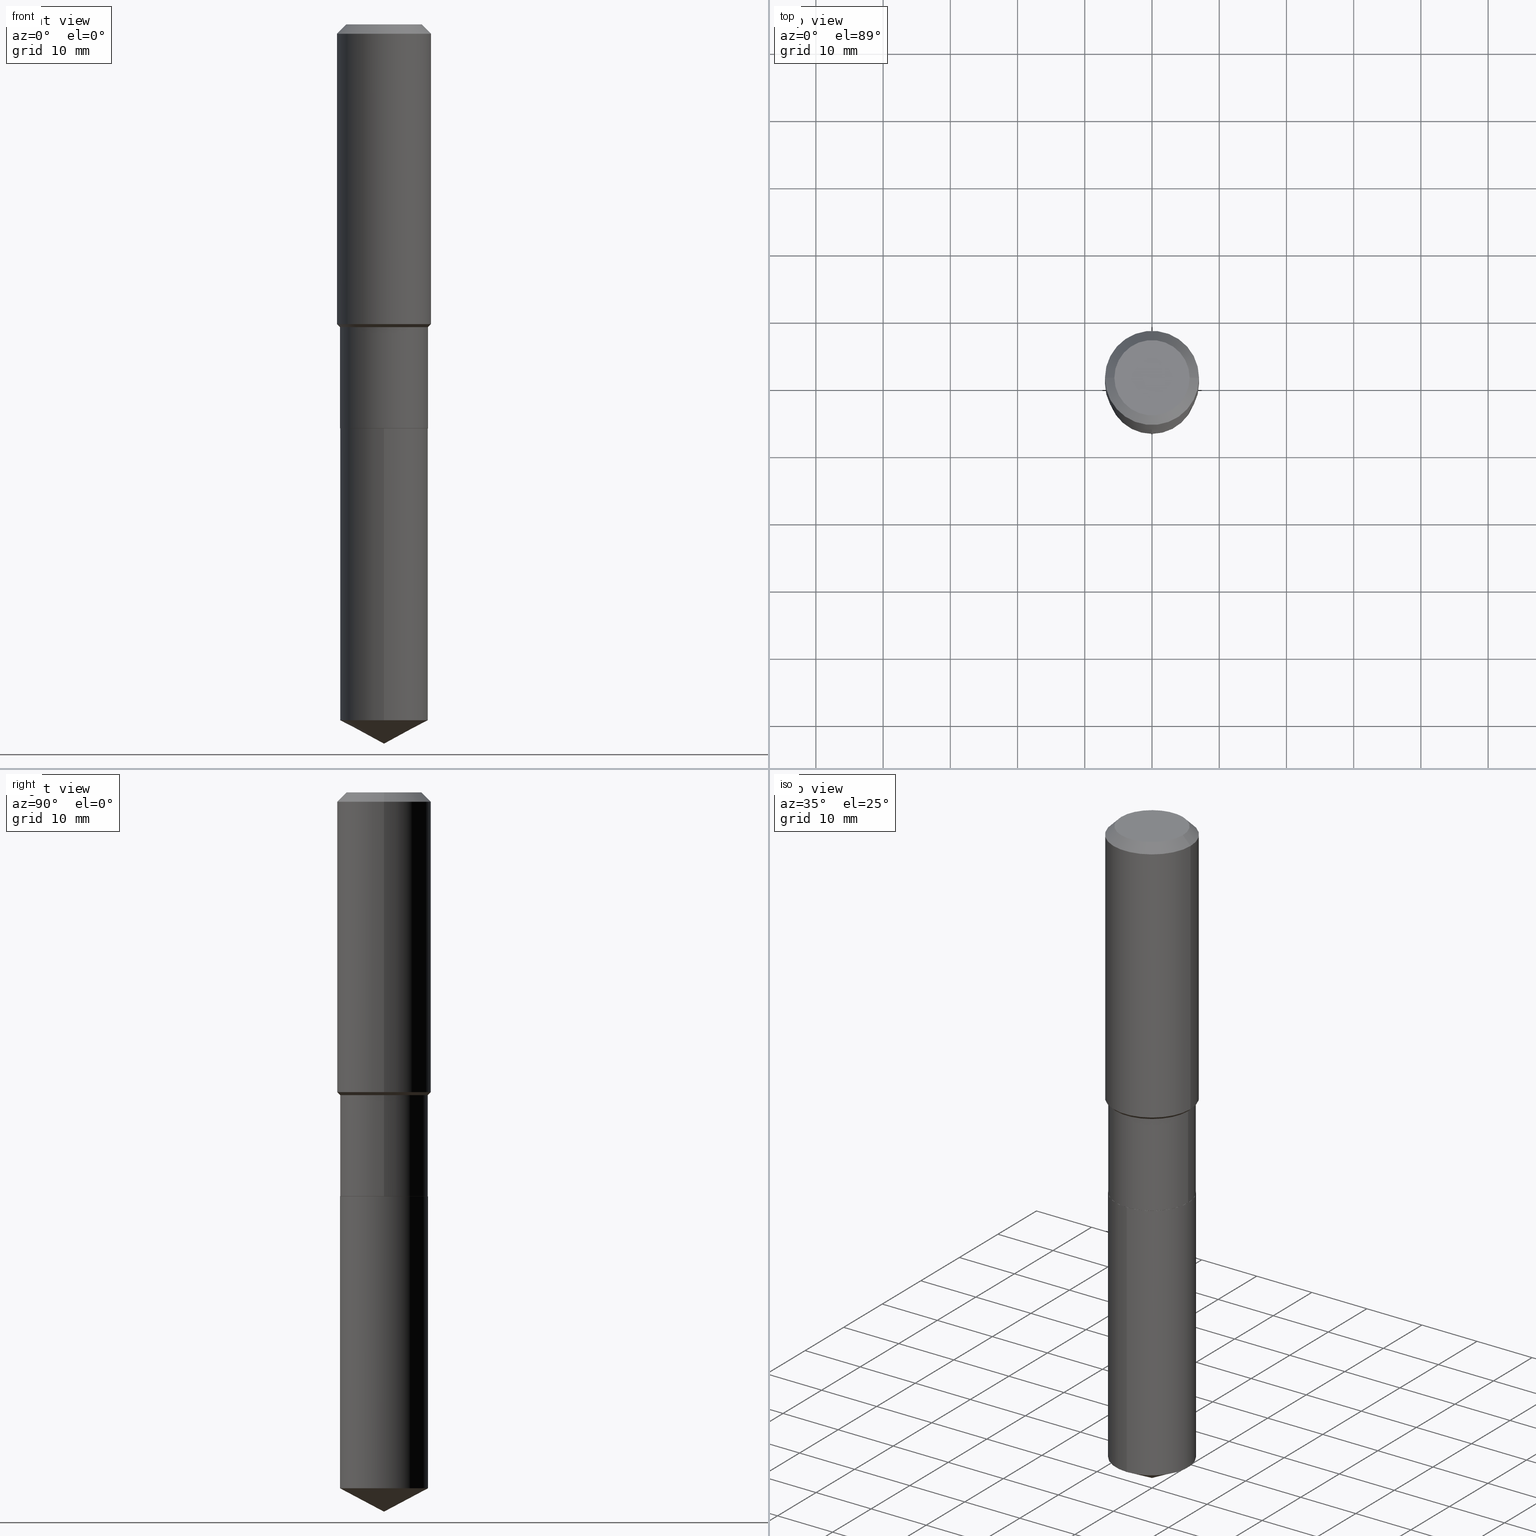
[diagram: canonical four-view strip — front | top / right | iso, engineering-drawing reading convention]
A machine part, canonical four-view strip (front | top / right | iso — engineering-drawing reading convention). The complete STEP part file that produces these views, byte-faithful:
ISO-10303-21;
HEADER;
FILE_DESCRIPTION (( 'STEP AP203' ),
    '1' );
FILE_NAME ('54729.STEP',
    '2024-04-24T15:39:23',
    ( '' ),
    ( '' ),
    'SwSTEP 2.0',
    'SolidWorks 2023',
    '' );
FILE_SCHEMA (( 'CONFIG_CONTROL_DESIGN' ));
ENDSEC;

DATA;
#1 = CARTESIAN_POINT ( 'NONE',  ( 0.2577999999999999181, -7.990953340210302036E-15, -1.773100000000000565 ) ) ;
#2 = ORIENTED_EDGE ( 'NONE', *, *, #6, .F. ) ;
#3 = APPROVAL_PERSON_ORGANIZATION ( #250, #317, #217 ) ;
#4 = CARTESIAN_POINT ( 'NONE',  ( 1.030189574577574283E-28, -1.470805283457749786E-14, -4.212600000000000122 ) ) ;
#5 = CARTESIAN_POINT ( 'NONE',  ( -0.2577999999999999181, 1.831779172789537697E-15, -1.268101466267714406E-29 ) ) ;
#6 = EDGE_CURVE ( 'NONE', #366, #441, #373, .T. ) ;
#7 = LINE ( 'NONE', #1, #436 ) ;
#8 = ORIENTED_EDGE ( 'NONE', *, *, #155, .F. ) ;
#9 = VECTOR ( 'NONE', #417, 39.37007874015748143 ) ;
#10 = CC_DESIGN_SECURITY_CLASSIFICATION ( #194, ( #467 ) ) ;
#11 = CARTESIAN_POINT ( 'NONE',  ( 0.2756000000000002337, -8.053101708041710718E-15, -1.755300000000000304 ) ) ;
#12 = DIRECTION ( 'NONE',  ( -2.445468806185136877E-29, 3.491481338843145188E-15, 1.000000000000000000 ) ) ;
#13 = CC_DESIGN_PERSON_AND_ORGANIZATION_ASSIGNMENT ( #291, #259, ( #223 ) ) ;
#14 = FACE_OUTER_BOUND ( 'NONE', #300, .T. ) ;
#15 = DIRECTION ( 'NONE',  ( 1.000000000000000000, -6.982962677686266711E-15, 0.000000000000000000 ) ) ;
#16 = ORIENTED_EDGE ( 'NONE', *, *, #420, .T. ) ;
#17 = EDGE_CURVE ( 'NONE', #219, #65, #20, .T. ) ;
#18 = DIRECTION ( 'NONE',  ( 1.000000000000000000, -6.982962677686267499E-15, 4.876176775795935793E-29 ) ) ;
#19 = FACE_OUTER_BOUND ( 'NONE', #263, .T. ) ;
#20 = CIRCLE ( 'NONE', #353, 0.2577999999999999736 ) ;
#21 = CIRCLE ( 'NONE', #301, 0.2756000000000002337 ) ;
#22 = DIRECTION ( 'NONE',  ( -2.445468806185136597E-29, 3.491481338843145583E-15, 1.000000000000000000 ) ) ;
#23 = DIRECTION ( 'NONE',  ( -6.982962677686265922E-15, -1.000000000000000000, 3.179031800229941890E-15 ) ) ;
#24 = DIRECTION ( 'NONE',  ( -1.000000000000000000, 6.982962677686265922E-15, -4.876176775795935793E-29 ) ) ;
#25 = CC_DESIGN_PERSON_AND_ORGANIZATION_ASSIGNMENT ( #108, #70, ( #467 ) ) ;
#26 = EDGE_CURVE ( 'NONE', #292, #154, #142, .T. ) ;
#27 = DATE_AND_TIME ( #482, #339 ) ;
#28 = VERTEX_POINT ( 'NONE', #275 ) ;
#29 = AXIS2_PLACEMENT_3D ( 'NONE', #432, #204, #394 ) ;
#30 = EDGE_CURVE ( 'NONE', #72, #81, #265, .T. ) ;
#31 = CALENDAR_DATE ( 2024, 24, 4 ) ;
#32 = PERSON_AND_ORGANIZATION ( #443, #221 ) ;
#33 = CARTESIAN_POINT ( 'NONE',  ( 0.000000000000000000, 0.000000000000000000, 0.000000000000000000 ) ) ;
#34 = ORIENTED_EDGE ( 'NONE', *, *, #195, .T. ) ;
#35 = LOCAL_TIME ( 11, 39, 23.00000000000000000, #473 ) ;
#36 = DIRECTION ( 'NONE',  ( -2.445468806185136597E-29, 3.491481338843145583E-15, 1.000000000000000000 ) ) ;
#37 = DIRECTION ( 'NONE',  ( -6.982962677686265922E-15, -1.000000000000000000, 3.179031800229941890E-15 ) ) ;
#38 = ORIENTED_EDGE ( 'NONE', *, *, #418, .F. ) ;
#39 = DIRECTION ( 'NONE',  ( 1.000000000000000000, -6.982962677686265922E-15, 0.000000000000000000 ) ) ;
#40 = CC_DESIGN_DATE_AND_TIME_ASSIGNMENT ( #180, #364, ( #223 ) ) ;
#41 = CARTESIAN_POINT ( 'NONE',  ( -0.2572999999999999732, -6.432618388592147044E-15, -2.366000000000000547 ) ) ;
#42 = CARTESIAN_POINT ( 'NONE',  ( 5.785979195434034596E-29, -8.260844847702884631E-15, -2.366000000000000547 ) ) ;
#43 = EDGE_CURVE ( 'NONE', #192, #109, #305, .T. ) ;
#44 = EDGE_CURVE ( 'NONE', #264, #192, #416, .T. ) ;
#45 = DIRECTION ( 'NONE',  ( -2.445468806185136877E-29, 3.491481338843145188E-15, 1.000000000000000000 ) ) ;
#46 = PLANE ( 'NONE',  #160 ) ;
#47 = EDGE_LOOP ( 'NONE', ( #87, #145, #408, #392 ) ) ;
#48 = CONICAL_SURFACE ( 'NONE', #29, 0.2756000000000000116, 0.7853981633974452814 ) ;
#49 = AXIS2_PLACEMENT_3D ( 'NONE', #33, #288, #404 ) ;
#50 = DIRECTION ( 'NONE',  ( 1.000000000000000000, -6.982962677686266711E-15, 4.876132675269083677E-29 ) ) ;
#51 = PLANE ( 'NONE',  #55 ) ;
#52 = DIRECTION ( 'NONE',  ( -2.445495569307621090E-29, 3.491443012528485413E-15, 1.000000000000000000 ) ) ;
#53 = CARTESIAN_POINT ( 'NONE',  ( 0.000000000000000000, 0.000000000000000000, 0.000000000000000000 ) ) ;
#54 = FACE_OUTER_BOUND ( 'NONE', #241, .T. ) ;
#55 = AXIS2_PLACEMENT_3D ( 'NONE', #469, #129, #208 ) ;
#56 = APPROVAL_PERSON_ORGANIZATION ( #188, #231, #327 ) ;
#57 = DIRECTION ( 'NONE',  ( 1.000000000000000000, -6.982962677686267499E-15, 0.000000000000000000 ) ) ;
#58 = DIRECTION ( 'NONE',  ( -2.445468806185136597E-29, 3.491481338843145583E-15, 1.000000000000000000 ) ) ;
#59 = ORIENTED_EDGE ( 'NONE', *, *, #271, .F. ) ;
#60 = ADVANCED_FACE ( 'NONE', ( #200 ), #322, .T. ) ;
#61 = MECHANICAL_CONTEXT ( 'NONE', #448, 'mechanical' ) ;
#62 = CALENDAR_DATE ( 2024, 24, 4 ) ;
#63 = APPROVAL_STATUS ( 'not_yet_approved' ) ;
#64 = ORIENTED_EDGE ( 'NONE', *, *, #437, .T. ) ;
#65 = VERTEX_POINT ( 'NONE', #121 ) ;
#66 = CONICAL_SURFACE ( 'NONE', #466, 0.2577999999999999181, 0.7853981633974492782 ) ;
#67 = AXIS2_PLACEMENT_3D ( 'NONE', #94, #243, #23 ) ;
#68 = ORIENTED_EDGE ( 'NONE', *, *, #26, .T. ) ;
#69 = CARTESIAN_POINT ( 'NONE',  ( 4.336060740246867168E-29, -6.190745561902783658E-15, -1.773100000000000565 ) ) ;
#70 = PERSON_AND_ORGANIZATION_ROLE ( 'creator' ) ;
#71 = EDGE_LOOP ( 'NONE', ( #489, #141, #462, #273 ) ) ;
#72 = VERTEX_POINT ( 'NONE', #76 ) ;
#73 = ORIENTED_EDGE ( 'NONE', *, *, #104, .F. ) ;
#74 = CLOSED_SHELL ( 'NONE', ( #389, #431, #176, #158, #402 ) ) ;
#75 = VECTOR ( 'NONE', #77, 39.37007874015748143 ) ;
#76 = CARTESIAN_POINT ( 'NONE',  ( -0.2756000000000000116, -1.202268042979367764E-15, -0.05512000000000035621 ) ) ;
#77 = DIRECTION ( 'NONE',  ( -0.7071067811865482389, 7.493145998870357316E-15, 0.7071067811865467956 ) ) ;
#78 = ORIENTED_EDGE ( 'NONE', *, *, #171, .F. ) ;
#79 = CARTESIAN_POINT ( 'NONE',  ( 0.2756000000000000116, -2.116954965367370658E-15, -0.05512000000000035621 ) ) ;
#80 = AXIS2_PLACEMENT_3D ( 'NONE', #312, #387, #206 ) ;
#81 = VERTEX_POINT ( 'NONE', #79 ) ;
#82 = EDGE_CURVE ( 'NONE', #154, #441, #372, .T. ) ;
#83 = DIRECTION ( 'NONE',  ( -0.7071067811864267805, 7.493145998869918709E-15, 0.7071067811866682540 ) ) ;
#84 = DIRECTION ( 'NONE',  ( 1.000000000000000000, -6.982962677686264344E-15, 0.000000000000000000 ) ) ;
#85 = CC_DESIGN_PERSON_AND_ORGANIZATION_ASSIGNMENT ( #444, #196, ( #442 ) ) ;
#86 = FACE_OUTER_BOUND ( 'NONE', #294, .T. ) ;
#87 = ORIENTED_EDGE ( 'NONE', *, *, #6, .T. ) ;
#88 = DIRECTION ( 'NONE',  ( -2.445495569307621090E-29, 3.491443012528485413E-15, 1.000000000000000000 ) ) ;
#89 = DIRECTION ( 'NONE',  ( -2.445468806185136597E-29, 3.491481338843145583E-15, 1.000000000000000000 ) ) ;
#90 = CIRCLE ( 'NONE', #478, 0.2756000000000002337 ) ;
#91 = ADVANCED_FACE ( 'NONE', ( #228 ), #344, .T. ) ;
#92 = CONICAL_SURFACE ( 'NONE', #249, 0.2572999999999999732, 0.7853981633972775267 ) ;
#93 = DIRECTION ( 'NONE',  ( 6.273719981627760554E-15, 0.8829475928589289868, 0.4694715627858866425 ) ) ;
#94 = CARTESIAN_POINT ( 'NONE',  ( 5.785979195434034596E-29, -8.260844847702884631E-15, -2.366000000000000547 ) ) ;
#95 = DIRECTION ( 'NONE',  ( 1.000000000000000000, -6.982962677686266711E-15, 0.000000000000000000 ) ) ;
#96 = EDGE_LOOP ( 'NONE', ( #78, #64, #260 ) ) ;
#97 = PLANE ( 'NONE',  #98 ) ;
#98 = AXIS2_PLACEMENT_3D ( 'NONE', #351, #282, #132 ) ;
#99 = AXIS2_PLACEMENT_3D ( 'NONE', #136, #421, #311 ) ;
#100 = LENGTH_MEASURE_WITH_UNIT ( LENGTH_MEASURE( 0.02539999999999999897 ), #440 );
#101 = VERTEX_POINT ( 'NONE', #119 ) ;
#102 = APPLICATION_PROTOCOL_DEFINITION ( 'international standard', 'config_control_design', 1994, #252 ) ;
#103 = ORIENTED_EDGE ( 'NONE', *, *, #348, .T. ) ;
#104 = EDGE_CURVE ( 'NONE', #441, #192, #341, .T. ) ;
#105 = EDGE_CURVE ( 'NONE', #371, #72, #419, .T. ) ;
#106 = CIRCLE ( 'NONE', #410, 0.2577999999999999181 ) ;
#107 = CARTESIAN_POINT ( 'NONE',  ( 0.2756000000000000116, -2.083203699582869812E-15, -0.05512000000000035621 ) ) ;
#108 = PERSON_AND_ORGANIZATION ( #443, #221 ) ;
#109 = VERTEX_POINT ( 'NONE', #148 ) ;
#110 = EDGE_CURVE ( 'NONE', #109, #72, #306, .T. ) ;
#111 =( CONVERSION_BASED_UNIT ( 'INCH', #100 ) LENGTH_UNIT ( ) NAMED_UNIT ( #385 ) );
#112 = EDGE_LOOP ( 'NONE', ( #244, #103, #140, #378 ) ) ;
#113 = CARTESIAN_POINT ( 'NONE',  ( 5.784756461030941795E-29, -8.259099107033462339E-15, -2.365500000000000380 ) ) ;
#114 = CIRCLE ( 'NONE', #182, 0.2204800000000000093 ) ;
#115 = CARTESIAN_POINT ( 'NONE',  ( 4.336060740246867168E-29, -6.190745561902783658E-15, -1.773100000000000565 ) ) ;
#116 = CARTESIAN_POINT ( 'NONE',  ( -1.800207778307461580E-15, -0.2578000000000082448, -2.365999999999999659 ) ) ;
#117 = ORIENTED_EDGE ( 'NONE', *, *, #487, .F. ) ;
#118 = CARTESIAN_POINT ( 'NONE',  ( 1.347942405969256063E-30, -1.924504513970354330E-16, -0.05512000000000035621 ) ) ;
#119 = CARTESIAN_POINT ( 'NONE',  ( 1.030189463526528547E-28, -1.470805283457749786E-14, -4.212600000000000122 ) ) ;
#120 = AXIS2_PLACEMENT_3D ( 'NONE', #198, #269, #411 ) ;
#121 = CARTESIAN_POINT ( 'NONE',  ( 1.831779172789637883E-15, 0.2577999999999917025, -2.366000000000000991 ) ) ;
#122 = ORIENTED_EDGE ( 'NONE', *, *, #30, .F. ) ;
#123 = PERSON_AND_ORGANIZATION ( #443, #221 ) ;
#124 = CARTESIAN_POINT ( 'NONE',  ( 5.785979195434034596E-29, -8.260844847702884631E-15, -2.366000000000000547 ) ) ;
#125 = CARTESIAN_POINT ( 'NONE',  ( -0.2577999999999999181, -5.393143161678585695E-15, -1.773100000000000565 ) ) ;
#126 = DIRECTION ( 'NONE',  ( -6.165590087286829718E-15, -0.8829475928589257672, 0.4694715627858929707 ) ) ;
#127 = AXIS2_PLACEMENT_3D ( 'NONE', #118, #203, #197 ) ;
#128 = CC_DESIGN_APPROVAL ( #317, ( #223 ) ) ;
#129 = DIRECTION ( 'NONE',  ( 2.445495569307620810E-29, -3.491443012528485413E-15, -1.000000000000000000 ) ) ;
#130 = EDGE_CURVE ( 'NONE', #264, #185, #7, .T. ) ;
#131 = CARTESIAN_POINT ( 'NONE',  ( 0.000000000000000000, 0.000000000000000000, 0.000000000000000000 ) ) ;
#132 = DIRECTION ( 'NONE',  ( 1.000000000000000000, -6.982962677686265922E-15, 4.876176775795935793E-29 ) ) ;
#133 = ORIENTED_EDGE ( 'NONE', *, *, #348, .F. ) ;
#134 = CALENDAR_DATE ( 2024, 24, 4 ) ;
#135 = CYLINDRICAL_SURFACE ( 'NONE', #338, 0.2756000000000001227 ) ;
#136 = CARTESIAN_POINT ( 'NONE',  ( 0.000000000000000000, 0.000000000000000000, 0.000000000000000000 ) ) ;
#137 = ORIENTED_EDGE ( 'NONE', *, *, #423, .T. ) ;
#138 = AXIS2_PLACEMENT_3D ( 'NONE', #450, #415, #375 ) ;
#139 = LOCAL_TIME ( 11, 39, 23.00000000000000000, #218 ) ;
#140 = ORIENTED_EDGE ( 'NONE', *, *, #487, .T. ) ;
#141 = ORIENTED_EDGE ( 'NONE', *, *, #418, .T. ) ;
#142 = CIRCLE ( 'NONE', #477, 0.2572999999999999732 ) ;
#143 = CIRCLE ( 'NONE', #67, 0.2577999999999999736 ) ;
#144 = DIRECTION ( 'NONE',  ( 1.000000000000000000, -6.982962677686265922E-15, 0.000000000000000000 ) ) ;
#145 = ORIENTED_EDGE ( 'NONE', *, *, #104, .T. ) ;
#146 = DESIGN_CONTEXT ( 'detailed design', #252, 'design' ) ;
#147 = ORIENTED_EDGE ( 'NONE', *, *, #420, .F. ) ;
#148 = CARTESIAN_POINT ( 'NONE',  ( -0.2756000000000002337, -4.170341414316536808E-15, -1.755300000000000304 ) ) ;
#149 = ADVANCED_BREP_SHAPE_REPRESENTATION ( '54729', ( #409, #251, #49 ), #266 ) ;
#150 = AXIS2_PLACEMENT_3D ( 'NONE', #235, #242, #50 ) ;
#151 = EDGE_CURVE ( 'NONE', #192, #264, #106, .T. ) ;
#152 = CARTESIAN_POINT ( 'NONE',  ( 5.785979195434034596E-29, -8.260844847702884631E-15, -2.366000000000000547 ) ) ;
#153 = AXIS2_PLACEMENT_3D ( 'NONE', #425, #89, #237 ) ;
#154 = VERTEX_POINT ( 'NONE', #370 ) ;
#155 = EDGE_CURVE ( 'NONE', #292, #366, #456, .T. ) ;
#156 = DIRECTION ( 'NONE',  ( 0.7071067811865482389, -2.468850131082264555E-15, 0.7071067811865467956 ) ) ;
#157 = CYLINDRICAL_SURFACE ( 'NONE', #330, 0.2577999999999999736 ) ;
#158 = ADVANCED_FACE ( 'NONE', ( #267 ), #157, .T. ) ;
#159 = CARTESIAN_POINT ( 'NONE',  ( 5.785979195434034596E-29, -8.260844847702884631E-15, -2.366000000000000547 ) ) ;
#160 = AXIS2_PLACEMENT_3D ( 'NONE', #215, #357, #24 ) ;
#161 = EDGE_CURVE ( 'NONE', #363, #219, #453, .T. ) ;
#162 = DIRECTION ( 'NONE',  ( -2.445468806185136597E-29, 3.491481338843145583E-15, 1.000000000000000000 ) ) ;
#163 = DIRECTION ( 'NONE',  ( -6.982962677686265922E-15, -1.000000000000000000, 4.238709066973255853E-15 ) ) ;
#164 = DIRECTION ( 'NONE',  ( 2.445468806185136597E-29, -3.491481338843145583E-15, -1.000000000000000000 ) ) ;
#165 = ORIENTED_EDGE ( 'NONE', *, *, #186, .T. ) ;
#166 = DATE_TIME_ROLE ( 'classification_date' ) ;
#167 = DIRECTION ( 'NONE',  ( -2.445468806185136597E-29, 3.491481338843145583E-15, 1.000000000000000000 ) ) ;
#168 = APPROVAL ( #360, 'UNSPECIFIED' ) ;
#169 = FACE_OUTER_BOUND ( 'NONE', #283, .T. ) ;
#170 = AXIS2_PLACEMENT_3D ( 'NONE', #459, #272, #84 ) ;
#171 = EDGE_CURVE ( 'NONE', #101, #28, #340, .T. ) ;
#172 = APPROVAL_DATE_TIME ( #290, #168 ) ;
#173 = AXIS2_PLACEMENT_3D ( 'NONE', #113, #314, #429 ) ;
#174 = LINE ( 'NONE', #424, #485 ) ;
#175 = LINE ( 'NONE', #355, #458 ) ;
#176 = ADVANCED_FACE ( 'NONE', ( #383 ), #486, .T. ) ;
#177 = DIRECTION ( 'NONE',  ( -6.982962677686265133E-15, -1.000000000000000000, 3.541896320645570335E-15 ) ) ;
#178 = CARTESIAN_POINT ( 'NONE',  ( 1.347942405969256063E-30, -1.924504513970354330E-16, -0.05512000000000035621 ) ) ;
#179 = DIRECTION ( 'NONE',  ( -2.445495569307621090E-29, 3.491443012528485413E-15, 1.000000000000000000 ) ) ;
#180 = DATE_AND_TIME ( #31, #401 ) ;
#181 = ORIENTED_EDGE ( 'NONE', *, *, #130, .F. ) ;
#182 = AXIS2_PLACEMENT_3D ( 'NONE', #187, #365, #481 ) ;
#183 = EDGE_CURVE ( 'NONE', #109, #185, #90, .T. ) ;
#184 = CALENDAR_DATE ( 2024, 24, 4 ) ;
#185 = VERTEX_POINT ( 'NONE', #11 ) ;
#186 = EDGE_CURVE ( 'NONE', #480, #371, #400, .T. ) ;
#187 = CARTESIAN_POINT ( 'NONE',  ( -9.439721640706190018E-47, 1.347742071746724849E-32, 3.860086710912454339E-18 ) ) ;
#188 = PERSON_AND_ORGANIZATION ( #443, #221 ) ;
#189 = ORIENTED_EDGE ( 'NONE', *, *, #377, .T. ) ;
#190 = ORIENTED_EDGE ( 'NONE', *, *, #43, .T. ) ;
#191 = PERSON_AND_ORGANIZATION_ROLE ( 'design_supplier' ) ;
#192 = VERTEX_POINT ( 'NONE', #125 ) ;
#193 = AXIS2_PLACEMENT_3D ( 'NONE', #315, #214, #163 ) ;
#194 = SECURITY_CLASSIFICATION ( '', '', #329 ) ;
#195 = EDGE_CURVE ( 'NONE', #366, #264, #174, .T. ) ;
#196 = PERSON_AND_ORGANIZATION_ROLE ( 'design_owner' ) ;
#197 = DIRECTION ( 'NONE',  ( 1.000000000000000000, -6.982962677686265922E-15, 0.000000000000000000 ) ) ;
#198 = CARTESIAN_POINT ( 'NONE',  ( 5.785979195434034596E-29, -8.260844847702884631E-15, -2.366000000000000547 ) ) ;
#199 = AXIS2_PLACEMENT_3D ( 'NONE', #131, #426, #18 ) ;
#200 = FACE_OUTER_BOUND ( 'NONE', #224, .T. ) ;
#201 = ORIENTED_EDGE ( 'NONE', *, *, #30, .T. ) ;
#202 = DIRECTION ( 'NONE',  ( -2.445468806185136597E-29, 3.491481338843145583E-15, 1.000000000000000000 ) ) ;
#203 = DIRECTION ( 'NONE',  ( -2.445468806185136597E-29, 3.491481338843145583E-15, 1.000000000000000000 ) ) ;
#204 = DIRECTION ( 'NONE',  ( 2.445468806185136597E-29, -3.491481338843145583E-15, -1.000000000000000000 ) ) ;
#205 = VECTOR ( 'NONE', #299, 39.37007874015748143 ) ;
#206 = DIRECTION ( 'NONE',  ( -6.982962677686265922E-15, -1.000000000000000000, 3.179031800229941890E-15 ) ) ;
#207 = CARTESIAN_POINT ( 'NONE',  ( -1.800207778307461580E-15, -0.2578000000000082448, -2.365999999999999659 ) ) ;
#208 = DIRECTION ( 'NONE',  ( 6.982962677686265922E-15, 1.000000000000000000, -3.491443012528485413E-15 ) ) ;
#209 = DIRECTION ( 'NONE',  ( -2.445468806185136597E-29, 3.491481338843145583E-15, 1.000000000000000000 ) ) ;
#210 = DIRECTION ( 'NONE',  ( -2.445468806185136597E-29, 3.491481338843145583E-15, 1.000000000000000000 ) ) ;
#211 = CARTESIAN_POINT ( 'NONE',  ( -8.597752180862979327E-28, 1.227502428053811181E-13, 35.15747874015747954 ) ) ;
#212 = PERSON_AND_ORGANIZATION_ROLE ( 'classification_officer' ) ;
#213 = PRODUCT_DEFINITION_SHAPE ( 'NONE', 'NONE',  #223 ) ;
#214 = DIRECTION ( 'NONE',  ( -2.445495569307621090E-29, 3.491443012528485413E-15, 1.000000000000000000 ) ) ;
#215 = CARTESIAN_POINT ( 'NONE',  ( -4.719860820353095009E-47, 6.738710358733624243E-33, 1.930043355456227170E-18 ) ) ;
#216 = ORIENTED_EDGE ( 'NONE', *, *, #254, .F. ) ;
#217 = APPROVAL_ROLE ( '' ) ;
#218 = COORDINATED_UNIVERSAL_TIME_OFFSET ( 5, 0, .BEHIND. ) ;
#219 = VERTEX_POINT ( 'NONE', #207 ) ;
#220 = VECTOR ( 'NONE', #413, 39.37007874015748143 ) ;
#221 = ORGANIZATION ( 'UNSPECIFIED', 'UNSPECIFIED', '' ) ;
#222 =( NAMED_UNIT ( * ) SI_UNIT ( $, .STERADIAN. ) SOLID_ANGLE_UNIT ( ) );
#223 = PRODUCT_DEFINITION ( 'UNKNOWN', '', #467, #146 ) ;
#224 = EDGE_LOOP ( 'NONE', ( #68, #454, #2, #8 ) ) ;
#225 = CC_DESIGN_APPROVAL ( #168, ( #194 ) ) ;
#226 = ORIENTED_EDGE ( 'NONE', *, *, #326, .F. ) ;
#227 = CARTESIAN_POINT ( 'NONE',  ( -0.2756000000000001227, 1.958255779754836984E-15, -1.355658510874252567E-29 ) ) ;
#228 = FACE_OUTER_BOUND ( 'NONE', #325, .T. ) ;
#229 = DIRECTION ( 'NONE',  ( -2.445468806185136597E-29, 3.491481338843145583E-15, 1.000000000000000000 ) ) ;
#230 = ADVANCED_FACE ( 'NONE', ( #468 ), #349, .T. ) ;
#231 = APPROVAL ( #63, 'UNSPECIFIED' ) ;
#232 = CARTESIAN_POINT ( 'NONE',  ( 0.2572999999999999732, -1.005756114467156079E-14, -2.366000000000000547 ) ) ;
#233 = CARTESIAN_POINT ( 'NONE',  ( 0.2204800000000000093, -1.797903149065768707E-15, 3.860086710924123164E-18 ) ) ;
#234 = ORIENTED_EDGE ( 'NONE', *, *, #183, .T. ) ;
#235 = CARTESIAN_POINT ( 'NONE',  ( -9.439721640706190018E-47, 1.347742071746724849E-32, 3.860086710912454339E-18 ) ) ;
#236 = VECTOR ( 'NONE', #303, 39.37007874015748143 ) ;
#237 = DIRECTION ( 'NONE',  ( 1.000000000000000000, -6.982962677686265922E-15, 0.000000000000000000 ) ) ;
#238 = ADVANCED_FACE ( 'NONE', ( #287 ), #48, .T. ) ;
#239 = CARTESIAN_POINT ( 'NONE',  ( -8.597752180862979327E-28, 1.227502428053811181E-13, 35.15747874015747954 ) ) ;
#240 = CARTESIAN_POINT ( 'NONE',  ( 0.2756000000000001227, -1.924504513970336137E-15, 1.343874319409360548E-29 ) ) ;
#241 = EDGE_LOOP ( 'NONE', ( #310, #16 ) ) ;
#242 = DIRECTION ( 'NONE',  ( -2.445468806185136597E-29, 3.491481338843145583E-15, 1.000000000000000000 ) ) ;
#243 = DIRECTION ( 'NONE',  ( -2.445495569307621090E-29, 3.491443012528485413E-15, 1.000000000000000000 ) ) ;
#244 = ORIENTED_EDGE ( 'NONE', *, *, #186, .F. ) ;
#245 = CYLINDRICAL_SURFACE ( 'NONE', #80, 0.2577999999999999736 ) ;
#246 = ORIENTED_EDGE ( 'NONE', *, *, #105, .T. ) ;
#247 = VECTOR ( 'NONE', #258, 39.37007874015748143 ) ;
#248 = DATE_AND_TIME ( #134, #35 ) ;
#249 = AXIS2_PLACEMENT_3D ( 'NONE', #124, #58, #15 ) ;
#250 = PERSON_AND_ORGANIZATION ( #443, #221 ) ;
#251 = MANIFOLD_SOLID_BREP ( 'Body-Move/Copy2[2]', #435 ) ;
#252 = APPLICATION_CONTEXT ( 'configuration controlled 3d designs of mechanical parts and assemblies' ) ;
#253 = COORDINATED_UNIVERSAL_TIME_OFFSET ( 5, 0, .BEHIND. ) ;
#254 = EDGE_CURVE ( 'NONE', #185, #109, #21, .T. ) ;
#255 = ORIENTED_EDGE ( 'NONE', *, *, #130, .T. ) ;
#256 =( NAMED_UNIT ( * ) PLANE_ANGLE_UNIT ( ) SI_UNIT ( $, .RADIAN. ) );
#257 = EDGE_CURVE ( 'NONE', #28, #363, #451, .T. ) ;
#258 = DIRECTION ( 'NONE',  ( 0.7071067811865453523, -7.319954787623248157E-15, -0.7071067811865496822 ) ) ;
#259 = PERSON_AND_ORGANIZATION_ROLE ( 'creator' ) ;
#260 = ORIENTED_EDGE ( 'NONE', *, *, #257, .F. ) ;
#261 = ORIENTED_EDGE ( 'NONE', *, *, #374, .T. ) ;
#262 = ORIENTED_EDGE ( 'NONE', *, *, #171, .T. ) ;
#263 = EDGE_LOOP ( 'NONE', ( #277, #165 ) ) ;
#264 = VERTEX_POINT ( 'NONE', #390 ) ;
#265 = CIRCLE ( 'NONE', #127, 0.2756000000000000116 ) ;
#266 =( GEOMETRIC_REPRESENTATION_CONTEXT ( 3 ) GLOBAL_UNCERTAINTY_ASSIGNED_CONTEXT ( ( #379 ) ) GLOBAL_UNIT_ASSIGNED_CONTEXT ( ( #111, #256, #222 ) ) REPRESENTATION_CONTEXT ( 'NONE', 'WORKASPACE' ) );
#267 = FACE_OUTER_BOUND ( 'NONE', #337, .T. ) ;
#268 = ADVANCED_FACE ( 'NONE', ( #14 ), #135, .T. ) ;
#269 = DIRECTION ( 'NONE',  ( -2.445468806185136597E-29, 3.491481338843145583E-15, 1.000000000000000000 ) ) ;
#270 = ORIENTED_EDGE ( 'NONE', *, *, #423, .F. ) ;
#271 = EDGE_CURVE ( 'NONE', #28, #65, #284, .T. ) ;
#272 = DIRECTION ( 'NONE',  ( -2.445468806185136597E-29, 3.491481338843145583E-15, 1.000000000000000000 ) ) ;
#273 = ORIENTED_EDGE ( 'NONE', *, *, #374, .F. ) ;
#274 = CIRCLE ( 'NONE', #173, 0.2577999999999999736 ) ;
#275 = CARTESIAN_POINT ( 'NONE',  ( 1.831779172789638277E-15, 0.2577999999999858183, -4.075525308517672585 ) ) ;
#276 = CARTESIAN_POINT ( 'NONE',  ( 4.336060740246867168E-29, -6.190745561902783658E-15, -1.773100000000000565 ) ) ;
#277 = ORIENTED_EDGE ( 'NONE', *, *, #326, .T. ) ;
#278 = LINE ( 'NONE', #240, #307 ) ;
#279 = VECTOR ( 'NONE', #93, 39.37007874015748854 ) ;
#280 = FACE_OUTER_BOUND ( 'NONE', #47, .T. ) ;
#281 = CIRCLE ( 'NONE', #345, 0.2577999999999999736 ) ;
#282 = DIRECTION ( 'NONE',  ( -2.438088387897960049E-29, 3.491481338843145188E-15, 1.000000000000000000 ) ) ;
#283 = EDGE_LOOP ( 'NONE', ( #137, #405, #328, #422 ) ) ;
#284 = LINE ( 'NONE', #474, #313 ) ;
#285 = CARTESIAN_POINT ( 'NONE',  ( 5.785979195434034596E-29, -8.260844847702884631E-15, -2.366000000000000547 ) ) ;
#286 = APPROVAL_ROLE ( '' ) ;
#287 = FACE_OUTER_BOUND ( 'NONE', #112, .T. ) ;
#288 = DIRECTION ( 'NONE',  ( 0.000000000000000000, 0.000000000000000000, 1.000000000000000000 ) ) ;
#289 = ORIENTED_EDGE ( 'NONE', *, *, #110, .T. ) ;
#290 = DATE_AND_TIME ( #62, #438 ) ;
#291 = PERSON_AND_ORGANIZATION ( #443, #221 ) ;
#292 = VERTEX_POINT ( 'NONE', #320 ) ;
#293 = LINE ( 'NONE', #107, #247 ) ;
#294 = EDGE_LOOP ( 'NONE', ( #343, #38 ) ) ;
#295 = CIRCLE ( 'NONE', #354, 0.2572999999999999732 ) ;
#296 = CARTESIAN_POINT ( 'NONE',  ( 0.2577999999999999736, -1.005930688534098151E-14, -2.365500000000000380 ) ) ;
#297 = ORIENTED_EDGE ( 'NONE', *, *, #43, .F. ) ;
#298 = CC_DESIGN_PERSON_AND_ORGANIZATION_ASSIGNMENT ( #32, #191, ( #467 ) ) ;
#299 = DIRECTION ( 'NONE',  ( 0.7071067811864267805, -2.468850131080992517E-15, 0.7071067811866682540 ) ) ;
#300 = EDGE_LOOP ( 'NONE', ( #479, #234, #189, #122 ) ) ;
#301 = AXIS2_PLACEMENT_3D ( 'NONE', #386, #167, #57 ) ;
#302 = AXIS2_PLACEMENT_3D ( 'NONE', #461, #210, #384 ) ;
#303 = DIRECTION ( 'NONE',  ( -2.445468806185136877E-29, 3.491481338843145188E-15, 1.000000000000000000 ) ) ;
#304 = EDGE_LOOP ( 'NONE', ( #133, #226, #246, #201 ) ) ;
#305 = LINE ( 'NONE', #342, #75 ) ;
#306 = LINE ( 'NONE', #227, #236 ) ;
#307 = VECTOR ( 'NONE', #12, 39.37007874015748143 ) ;
#308 = APPROVAL_PERSON_ORGANIZATION ( #358, #168, #286 ) ;
#309 = DIRECTION ( 'NONE',  ( -2.445495569307621090E-29, 3.491443012528485413E-15, 1.000000000000000000 ) ) ;
#310 = ORIENTED_EDGE ( 'NONE', *, *, #17, .T. ) ;
#311 = DIRECTION ( 'NONE',  ( 1.000000000000000000, -6.982962677686267499E-15, 4.876176775795936353E-29 ) ) ;
#312 = CARTESIAN_POINT ( 'NONE',  ( 5.785979195434034596E-29, -8.260844847702884631E-15, -2.366000000000000547 ) ) ;
#313 = VECTOR ( 'NONE', #179, 39.37007874015748143 ) ;
#314 = DIRECTION ( 'NONE',  ( -2.445468806185136597E-29, 3.491481338843145583E-15, 1.000000000000000000 ) ) ;
#315 = CARTESIAN_POINT ( 'NONE',  ( 9.966615763033243372E-29, -1.422955504086751126E-14, -4.075525308517671697 ) ) ;
#316 = DIRECTION ( 'NONE',  ( -6.982962677686265133E-15, -1.000000000000000000, 3.541896320645570335E-15 ) ) ;
#317 = APPROVAL ( #488, 'UNSPECIFIED' ) ;
#318 = DIRECTION ( 'NONE',  ( -1.000000000000000000, 6.982962677686269077E-15, 0.000000000000000000 ) ) ;
#319 = COORDINATED_UNIVERSAL_TIME_OFFSET ( 5, 0, .BEHIND. ) ;
#320 = CARTESIAN_POINT ( 'NONE',  ( 0.2572999999999999732, -1.005756114467156079E-14, -2.366000000000000547 ) ) ;
#321 = ORIENTED_EDGE ( 'NONE', *, *, #44, .T. ) ;
#322 = CONICAL_SURFACE ( 'NONE', #120, 0.2572999999999999732, 0.7853981633972775267 ) ;
#323 = CONICAL_SURFACE ( 'NONE', #367, 74.04434902938334062, 1.082104136236485381 ) ;
#324 = DATE_AND_TIME ( #184, #139 ) ;
#325 = EDGE_LOOP ( 'NONE', ( #321, #190, #216, #181 ) ) ;
#326 = EDGE_CURVE ( 'NONE', #371, #480, #114, .T. ) ;
#327 = APPROVAL_ROLE ( '' ) ;
#328 = ORIENTED_EDGE ( 'NONE', *, *, #17, .F. ) ;
#329 = SECURITY_CLASSIFICATION_LEVEL ( 'unclassified' ) ;
#330 = AXIS2_PLACEMENT_3D ( 'NONE', #159, #309, #37 ) ;
#331 = CC_DESIGN_APPROVAL ( #231, ( #467 ) ) ;
#332 = CARTESIAN_POINT ( 'NONE',  ( -1.800207778307420165E-15, -0.2578000000000142955, -4.075525308517669920 ) ) ;
#333 = EDGE_LOOP ( 'NONE', ( #73, #261, #34, #399 ) ) ;
#334 = CARTESIAN_POINT ( 'NONE',  ( -0.2204800000000000093, 1.635828836874783961E-15, 3.860086710901350968E-18 ) ) ;
#335 = DIRECTION ( 'NONE',  ( 1.000000000000000000, -6.982962677686265922E-15, 0.000000000000000000 ) ) ;
#336 = DIRECTION ( 'NONE',  ( -0.7071067811865453523, 2.468850131082234184E-15, -0.7071067811865496822 ) ) ;
#337 = EDGE_LOOP ( 'NONE', ( #59, #434, #406, #147 ) ) ;
#338 = AXIS2_PLACEMENT_3D ( 'NONE', #53, #22, #470 ) ;
#339 = LOCAL_TIME ( 11, 39, 23.00000000000000000, #253 ) ;
#340 = LINE ( 'NONE', #4, #279 ) ;
#341 = LINE ( 'NONE', #5, #9 ) ;
#342 = CARTESIAN_POINT ( 'NONE',  ( -0.2577999999999999181, -4.358966389113245961E-15, -1.773100000000000565 ) ) ;
#343 = ORIENTED_EDGE ( 'NONE', *, *, #26, .F. ) ;
#344 = CONICAL_SURFACE ( 'NONE', #457, 0.2577999999999999181, 0.7853981633974492782 ) ;
#345 = AXIS2_PLACEMENT_3D ( 'NONE', #464, #52, #391 ) ;
#346 = CARTESIAN_POINT ( 'NONE',  ( 4.292531395496771171E-29, -6.128597194071374975E-15, -1.755300000000000304 ) ) ;
#347 = FACE_OUTER_BOUND ( 'NONE', #333, .T. ) ;
#348 = EDGE_CURVE ( 'NONE', #480, #81, #293, .T. ) ;
#349 = CYLINDRICAL_SURFACE ( 'NONE', #199, 0.2756000000000001227 ) ;
#350 = FACE_OUTER_BOUND ( 'NONE', #388, .T. ) ;
#351 = CARTESIAN_POINT ( 'NONE',  ( 4.031811109684418189E-29, -1.077291338754340070E-14, -2.366000000000000547 ) ) ;
#352 = PRODUCT_RELATED_PRODUCT_CATEGORY ( 'detail', '', ( #442 ) ) ;
#353 = AXIS2_PLACEMENT_3D ( 'NONE', #42, #368, #455 ) ;
#354 = AXIS2_PLACEMENT_3D ( 'NONE', #285, #162, #95 ) ;
#355 = CARTESIAN_POINT ( 'NONE',  ( 1.030176799216968900E-28, -1.470823419469847016E-14, -4.212600000000000122 ) ) ;
#356 = ADVANCED_FACE ( 'NONE', ( #403 ), #66, .T. ) ;
#357 = DIRECTION ( 'NONE',  ( 2.438088387897960049E-29, -3.491481338843145188E-15, -1.000000000000000000 ) ) ;
#358 = PERSON_AND_ORGANIZATION ( #443, #221 ) ;
#359 = APPLICATION_PROTOCOL_DEFINITION ( 'international standard', 'config_control_design', 1994, #448 ) ;
#360 = APPROVAL_STATUS ( 'not_yet_approved' ) ;
#361 = AXIS2_PLACEMENT_3D ( 'NONE', #239, #88, #177 ) ;
#362 = CIRCLE ( 'NONE', #153, 0.2756000000000000116 ) ;
#363 = VERTEX_POINT ( 'NONE', #332 ) ;
#364 = DATE_TIME_ROLE ( 'creation_date' ) ;
#365 = DIRECTION ( 'NONE',  ( -2.445468806185136597E-29, 3.491481338843145583E-15, 1.000000000000000000 ) ) ;
#366 = VERTEX_POINT ( 'NONE', #296 ) ;
#367 = AXIS2_PLACEMENT_3D ( 'NONE', #211, #433, #316 ) ;
#368 = DIRECTION ( 'NONE',  ( -2.445495569307621090E-29, 3.491443012528485413E-15, 1.000000000000000000 ) ) ;
#369 = ORIENTED_EDGE ( 'NONE', *, *, #183, .F. ) ;
#370 = CARTESIAN_POINT ( 'NONE',  ( -0.2572999999999999732, -6.429969161418035843E-15, -2.366000000000000547 ) ) ;
#371 = VERTEX_POINT ( 'NONE', #334 ) ;
#372 = LINE ( 'NONE', #41, #382 ) ;
#373 = CIRCLE ( 'NONE', #170, 0.2577999999999999736 ) ;
#374 = EDGE_CURVE ( 'NONE', #441, #366, #274, .T. ) ;
#375 = DIRECTION ( 'NONE',  ( 1.000000000000000000, -6.982962677686265922E-15, 0.000000000000000000 ) ) ;
#376 = DIRECTION ( 'NONE',  ( 1.000000000000000000, -6.982962677686266711E-15, 0.000000000000000000 ) ) ;
#377 = EDGE_CURVE ( 'NONE', #185, #81, #278, .T. ) ;
#378 = ORIENTED_EDGE ( 'NONE', *, *, #105, .F. ) ;
#379 = UNCERTAINTY_MEASURE_WITH_UNIT (LENGTH_MEASURE( 1.000000000000000082E-05 ), #111, 'distance_accuracy_value', 'NONE');
#380 = CYLINDRICAL_SURFACE ( 'NONE', #302, 0.2577999999999999181 ) ;
#381 = ORIENTED_EDGE ( 'NONE', *, *, #151, .T. ) ;
#382 = VECTOR ( 'NONE', #83, 39.37007874015748143 ) ;
#383 = FACE_OUTER_BOUND ( 'NONE', #96, .T. ) ;
#384 = DIRECTION ( 'NONE',  ( 1.000000000000000000, -6.982962677686267499E-15, 4.876176775795936353E-29 ) ) ;
#385 = DIMENSIONAL_EXPONENTS ( 1.000000000000000000, 0.000000000000000000, 0.000000000000000000, 0.000000000000000000, 0.000000000000000000, 0.000000000000000000, 0.000000000000000000 ) ;
#386 = CARTESIAN_POINT ( 'NONE',  ( 4.292531395496771171E-29, -6.128597194071374975E-15, -1.755300000000000304 ) ) ;
#387 = DIRECTION ( 'NONE',  ( -2.445495569307621090E-29, 3.491443012528485413E-15, 1.000000000000000000 ) ) ;
#388 = EDGE_LOOP ( 'NONE', ( #445, #262, #270 ) ) ;
#389 = ADVANCED_FACE ( 'NONE', ( #169 ), #245, .T. ) ;
#390 = CARTESIAN_POINT ( 'NONE',  ( 0.2577999999999999181, -7.990953340210302036E-15, -1.773100000000000565 ) ) ;
#391 = DIRECTION ( 'NONE',  ( -6.982962677686265922E-15, -1.000000000000000000, 4.238709066973255853E-15 ) ) ;
#392 = ORIENTED_EDGE ( 'NONE', *, *, #195, .F. ) ;
#393 = VECTOR ( 'NONE', #336, 39.37007874015748143 ) ;
#394 = DIRECTION ( 'NONE',  ( -1.000000000000000000, 6.982962677686269077E-15, 0.000000000000000000 ) ) ;
#395 = AXIS2_PLACEMENT_3D ( 'NONE', #178, #164, #318 ) ;
#396 = FACE_OUTER_BOUND ( 'NONE', #71, .T. ) ;
#397 = APPROVAL_DATE_TIME ( #27, #317 ) ;
#398 = COORDINATED_UNIVERSAL_TIME_OFFSET ( 5, 0, .BEHIND. ) ;
#399 = ORIENTED_EDGE ( 'NONE', *, *, #151, .F. ) ;
#400 = CIRCLE ( 'NONE', #150, 0.2204800000000000093 ) ;
#401 = LOCAL_TIME ( 11, 39, 23.00000000000000000, #398 ) ;
#402 = ADVANCED_FACE ( 'NONE', ( #54 ), #51, .F. ) ;
#403 = FACE_OUTER_BOUND ( 'NONE', #407, .T. ) ;
#404 = DIRECTION ( 'NONE',  ( 1.000000000000000000, 0.000000000000000000, 0.000000000000000000 ) ) ;
#405 = ORIENTED_EDGE ( 'NONE', *, *, #271, .T. ) ;
#406 = ORIENTED_EDGE ( 'NONE', *, *, #161, .T. ) ;
#407 = EDGE_LOOP ( 'NONE', ( #297, #381, #255, #369 ) ) ;
#408 = ORIENTED_EDGE ( 'NONE', *, *, #44, .F. ) ;
#409 = MANIFOLD_SOLID_BREP ( 'Body-Move/Copy2[1]', #74 ) ;
#410 = AXIS2_PLACEMENT_3D ( 'NONE', #115, #229, #39 ) ;
#411 = DIRECTION ( 'NONE',  ( 1.000000000000000000, -6.982962677686266711E-15, 0.000000000000000000 ) ) ;
#412 = CC_DESIGN_PERSON_AND_ORGANIZATION_ASSIGNMENT ( #123, #212, ( #194 ) ) ;
#413 = DIRECTION ( 'NONE',  ( -2.445495569307621090E-29, 3.491443012528485413E-15, 1.000000000000000000 ) ) ;
#414 = ADVANCED_FACE ( 'NONE', ( #86 ), #97, .F. ) ;
#415 = DIRECTION ( 'NONE',  ( -2.445468806185136597E-29, 3.491481338843145583E-15, 1.000000000000000000 ) ) ;
#416 = CIRCLE ( 'NONE', #138, 0.2577999999999999181 ) ;
#417 = DIRECTION ( 'NONE',  ( -2.445468806185136877E-29, 3.491481338843145188E-15, 1.000000000000000000 ) ) ;
#418 = EDGE_CURVE ( 'NONE', #154, #292, #295, .T. ) ;
#419 = LINE ( 'NONE', #490, #393 ) ;
#420 = EDGE_CURVE ( 'NONE', #65, #219, #143, .T. ) ;
#421 = DIRECTION ( 'NONE',  ( -2.445468806185136597E-29, 3.491481338843145583E-15, 1.000000000000000000 ) ) ;
#422 = ORIENTED_EDGE ( 'NONE', *, *, #161, .F. ) ;
#423 = EDGE_CURVE ( 'NONE', #363, #28, #281, .T. ) ;
#424 = CARTESIAN_POINT ( 'NONE',  ( 0.2577999999999999181, -1.800207778307519167E-15, 1.257078372800191925E-29 ) ) ;
#425 = CARTESIAN_POINT ( 'NONE',  ( 1.347942405969256063E-30, -1.924504513970354330E-16, -0.05512000000000035621 ) ) ;
#426 = DIRECTION ( 'NONE',  ( -2.445468806185136597E-29, 3.491481338843145583E-15, 1.000000000000000000 ) ) ;
#427 = FACE_OUTER_BOUND ( 'NONE', #304, .T. ) ;
#428 = CC_DESIGN_DATE_AND_TIME_ASSIGNMENT ( #248, #166, ( #194 ) ) ;
#429 = DIRECTION ( 'NONE',  ( 1.000000000000000000, -6.982962677686264344E-15, 0.000000000000000000 ) ) ;
#430 = ORIENTED_EDGE ( 'NONE', *, *, #254, .T. ) ;
#431 = ADVANCED_FACE ( 'NONE', ( #350 ), #323, .T. ) ;
#432 = CARTESIAN_POINT ( 'NONE',  ( 1.347942405969256063E-30, -1.924504513970354330E-16, -0.05512000000000035621 ) ) ;
#433 = DIRECTION ( 'NONE',  ( -2.445495569307621090E-29, 3.491443012528485413E-15, 1.000000000000000000 ) ) ;
#434 = ORIENTED_EDGE ( 'NONE', *, *, #257, .T. ) ;
#435 = CLOSED_SHELL ( 'NONE', ( #60, #238, #230, #91, #439, #483, #356, #268, #465, #449, #414, #447 ) ) ;
#436 = VECTOR ( 'NONE', #156, 39.37007874015748143 ) ;
#437 = EDGE_CURVE ( 'NONE', #101, #363, #175, .T. ) ;
#438 = LOCAL_TIME ( 11, 39, 23.00000000000000000, #319 ) ;
#439 = ADVANCED_FACE ( 'NONE', ( #280 ), #380, .T. ) ;
#440 =( LENGTH_UNIT ( ) NAMED_UNIT ( * ) SI_UNIT ( $, .METRE. ) );
#441 = VERTEX_POINT ( 'NONE', #471 ) ;
#442 = PRODUCT ( '54729', '54729', '', ( #61 ) ) ;
#443 = PERSON ( 'UNSPECIFIED', 'UNSPECIFIED', 'UNSPECIFIED', ('UNSPECIFIED'), ('UNSPECIFIED'), ('UNSPECIFIED') ) ;
#444 = PERSON_AND_ORGANIZATION ( #443, #221 ) ;
#445 = ORIENTED_EDGE ( 'NONE', *, *, #437, .F. ) ;
#446 = APPROVAL_DATE_TIME ( #324, #231 ) ;
#447 = ADVANCED_FACE ( 'NONE', ( #396 ), #92, .T. ) ;
#448 = APPLICATION_CONTEXT ( 'configuration controlled 3d designs of mechanical parts and assemblies' ) ;
#449 = ADVANCED_FACE ( 'NONE', ( #19 ), #46, .F. ) ;
#450 = CARTESIAN_POINT ( 'NONE',  ( 4.336060740246867168E-29, -6.190745561902783658E-15, -1.773100000000000565 ) ) ;
#451 = CIRCLE ( 'NONE', #193, 0.2577999999999999736 ) ;
#452 = CONICAL_SURFACE ( 'NONE', #395, 0.2756000000000000116, 0.7853981633974452814 ) ;
#453 = LINE ( 'NONE', #116, #220 ) ;
#454 = ORIENTED_EDGE ( 'NONE', *, *, #82, .T. ) ;
#455 = DIRECTION ( 'NONE',  ( -6.982962677686265922E-15, -1.000000000000000000, 3.179031800229941890E-15 ) ) ;
#456 = LINE ( 'NONE', #232, #205 ) ;
#457 = AXIS2_PLACEMENT_3D ( 'NONE', #276, #202, #335 ) ;
#458 = VECTOR ( 'NONE', #126, 39.37007874015748143 ) ;
#459 = CARTESIAN_POINT ( 'NONE',  ( 5.784756461030941795E-29, -8.259099107033462339E-15, -2.365500000000000380 ) ) ;
#460 = EDGE_LOOP ( 'NONE', ( #430, #289, #117, #472 ) ) ;
#461 = CARTESIAN_POINT ( 'NONE',  ( 0.000000000000000000, 0.000000000000000000, 0.000000000000000000 ) ) ;
#462 = ORIENTED_EDGE ( 'NONE', *, *, #155, .T. ) ;
#463 = DIRECTION ( 'NONE',  ( 1.000000000000000000, -6.982962677686267499E-15, 0.000000000000000000 ) ) ;
#464 = CARTESIAN_POINT ( 'NONE',  ( 9.966615763033243372E-29, -1.422955504086751126E-14, -4.075525308517671697 ) ) ;
#465 = ADVANCED_FACE ( 'NONE', ( #427 ), #452, .T. ) ;
#466 = AXIS2_PLACEMENT_3D ( 'NONE', #69, #484, #144 ) ;
#467 = PRODUCT_DEFINITION_FORMATION_WITH_SPECIFIED_SOURCE ( 'ANY', '', #442, .NOT_KNOWN. ) ;
#468 = FACE_OUTER_BOUND ( 'NONE', #460, .T. ) ;
#469 = CARTESIAN_POINT ( 'NONE',  ( 5.785979195434034596E-29, -8.260844847702884631E-15, -2.366000000000000547 ) ) ;
#470 = DIRECTION ( 'NONE',  ( 1.000000000000000000, -6.982962677686267499E-15, 4.876176775795935793E-29 ) ) ;
#471 = CARTESIAN_POINT ( 'NONE',  ( -0.2578000000000000291, -5.393143161678585695E-15, -2.365500000000000380 ) ) ;
#472 = ORIENTED_EDGE ( 'NONE', *, *, #377, .F. ) ;
#473 = COORDINATED_UNIVERSAL_TIME_OFFSET ( 5, 0, .BEHIND. ) ;
#474 = CARTESIAN_POINT ( 'NONE',  ( 1.831779172789595679E-15, 0.2577999999999917025, -2.366000000000000991 ) ) ;
#475 = CYLINDRICAL_SURFACE ( 'NONE', #99, 0.2577999999999999181 ) ;
#476 = SHAPE_DEFINITION_REPRESENTATION ( #213, #149 ) ;
#477 = AXIS2_PLACEMENT_3D ( 'NONE', #152, #36, #376 ) ;
#478 = AXIS2_PLACEMENT_3D ( 'NONE', #346, #209, #463 ) ;
#479 = ORIENTED_EDGE ( 'NONE', *, *, #110, .F. ) ;
#480 = VERTEX_POINT ( 'NONE', #233 ) ;
#481 = DIRECTION ( 'NONE',  ( 1.000000000000000000, -6.982962677686266711E-15, 4.876132675269083677E-29 ) ) ;
#482 = CALENDAR_DATE ( 2024, 24, 4 ) ;
#483 = ADVANCED_FACE ( 'NONE', ( #347 ), #475, .T. ) ;
#484 = DIRECTION ( 'NONE',  ( -2.445468806185136597E-29, 3.491481338843145583E-15, 1.000000000000000000 ) ) ;
#485 = VECTOR ( 'NONE', #45, 39.37007874015748143 ) ;
#486 = CONICAL_SURFACE ( 'NONE', #361, 74.04434902938334062, 1.082104136236485381 ) ;
#487 = EDGE_CURVE ( 'NONE', #81, #72, #362, .T. ) ;
#488 = APPROVAL_STATUS ( 'not_yet_approved' ) ;
#489 = ORIENTED_EDGE ( 'NONE', *, *, #82, .F. ) ;
#490 = CARTESIAN_POINT ( 'NONE',  ( -0.2756000000000000116, 1.732054062573300039E-15, -0.05512000000000035621 ) ) ;
ENDSEC;
END-ISO-10303-21;
